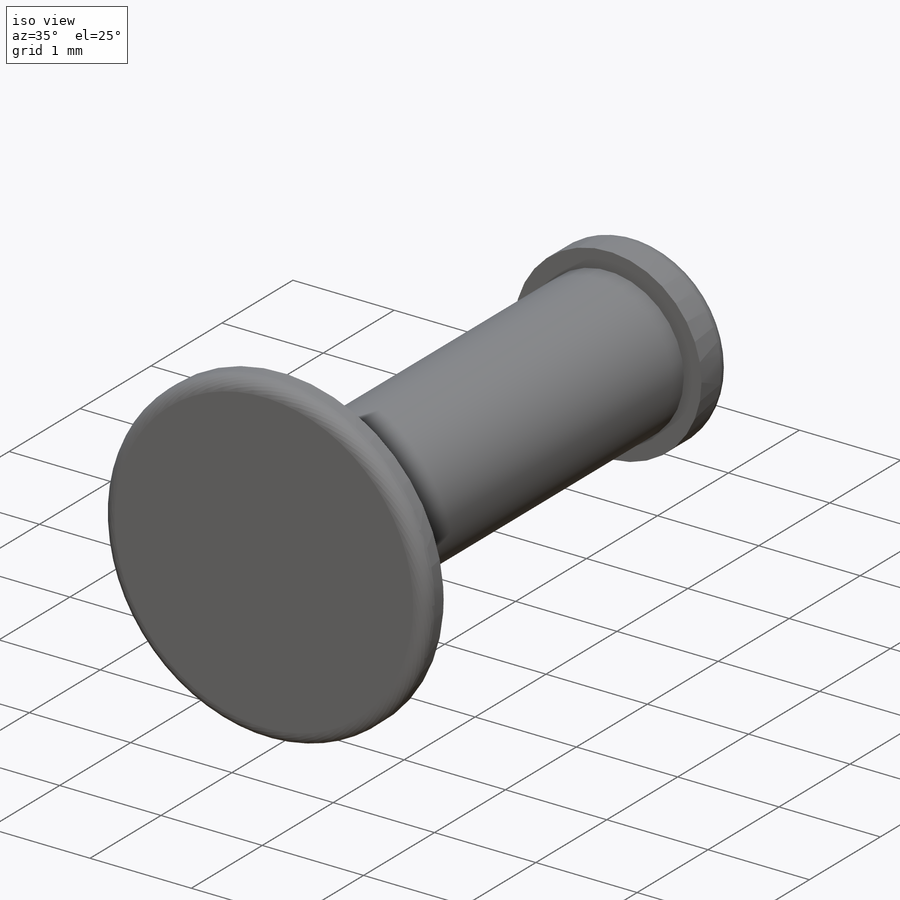
[diagram: iso view]
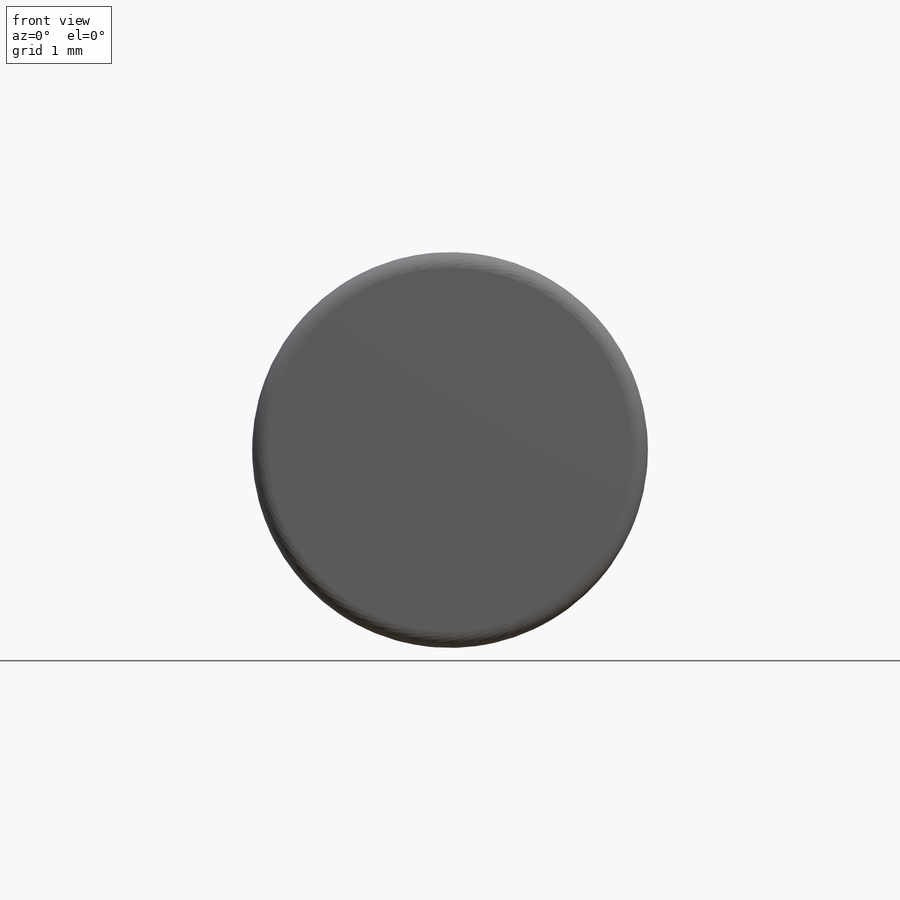
[diagram: front view]
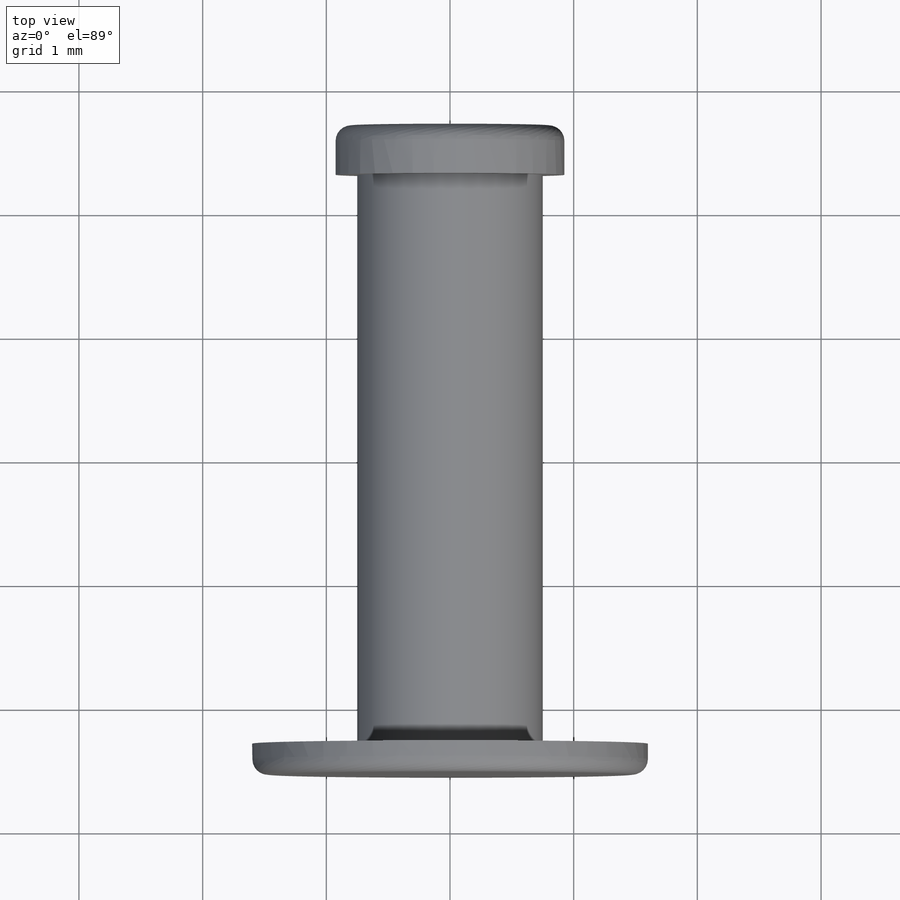
[diagram: top view]
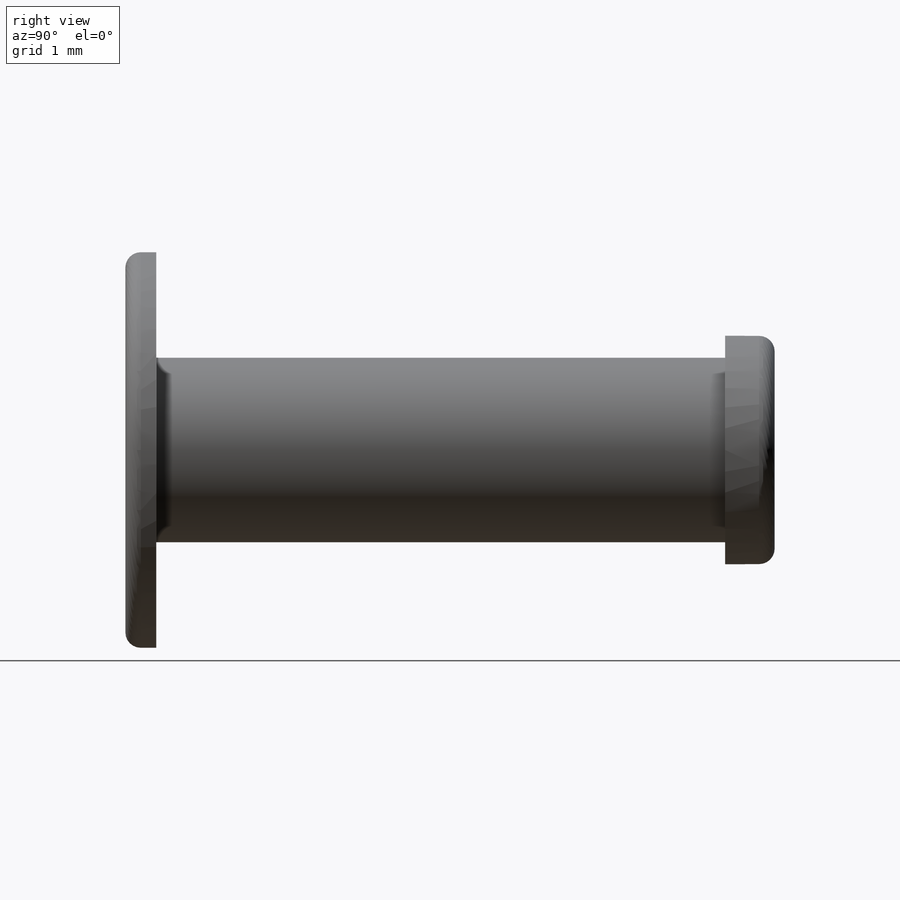
[diagram: right view]
SOLIDWORKS PART (.sldprt)
format: sldprt  version: not decoded by parser v0  size: 211,456 bytes
history: native  units: mm
features: sketch x3, extrude x3, material x1, fillet x1 (+16 scaffold rows collapsed)
feature tree (24):
  scaffold x16  (default folders/planes/origin — collapsed)
  material  "Zinc Alloy 7; AG40B; Zn-4Al-0.015Mg"
  sketch  "Sketch1"  dims[D1=1.5mm]
  extrude  "Extrude1"  Depth=4.6mm
  sketch  "Sketch2"  dims[D1=3.2mm]
  extrude  "Extrude2"  Depth=0.25mm
  sketch  "Sketch3"  dims[D1=1.85mm]
  extrude  "Extrude3"  Depth=0.4mm
  fillet  "Fillet1"  Radius=0.125mm
decode coverage: 7 of 7 modeling features carry decoded parameters
note: suppression state not decoded; provenance and decode notes live in map.json
